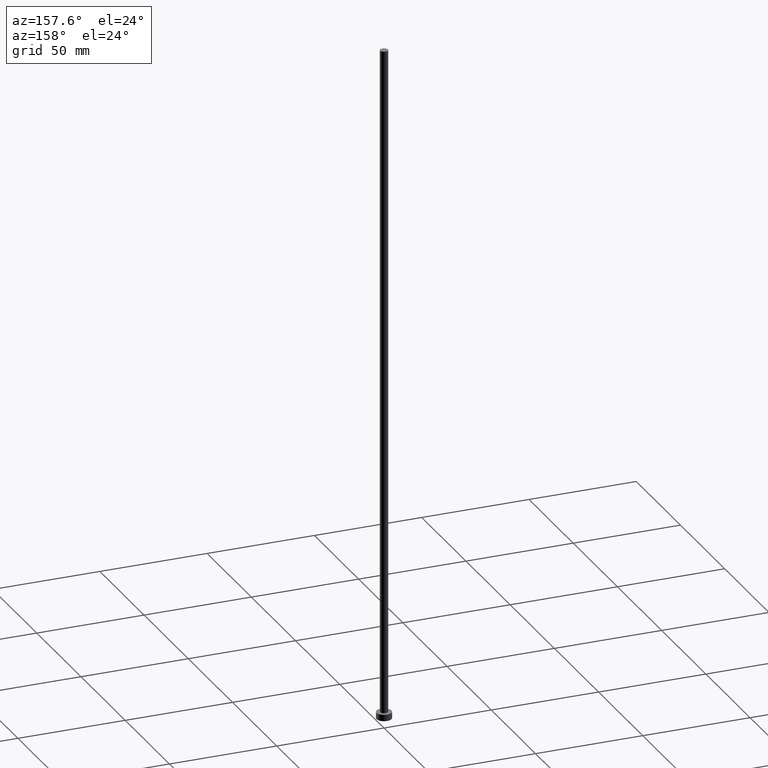
[diagram: clean part render]
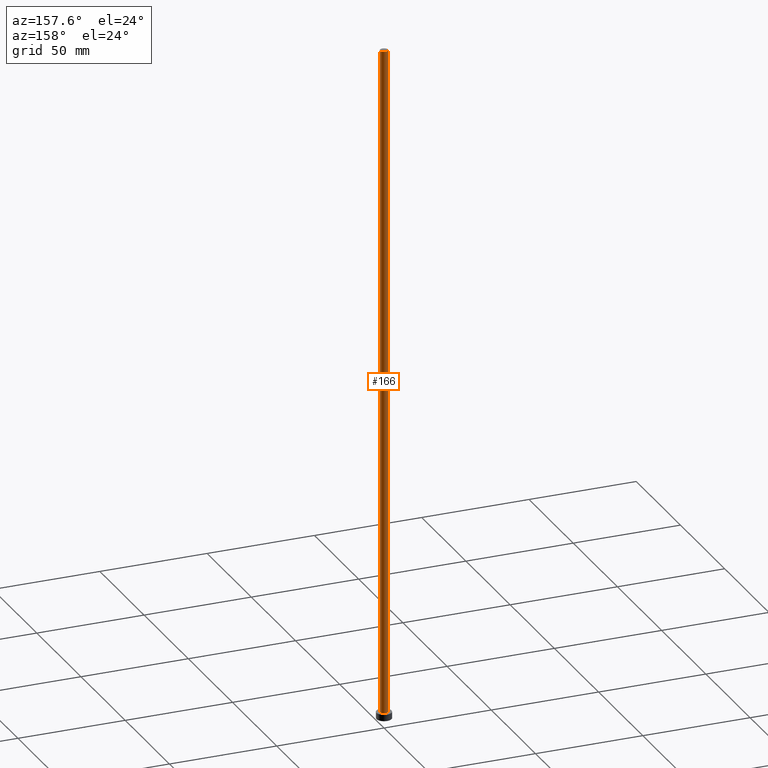
[diagram: same view with one face highlighted and labeled with its STEP entity id]
A machine part, auxiliary view. The second image highlights one B-rep face of the part: STEP entity #166.
In plain terms, the highlighted cylindrical surface (edge-blend (fillet) strip) has radius 1.85 mm, axis along (-0, -0, -1).
Its self-contained STEP definition (entity closure, byte-faithful):
#2 = DIRECTION ( 'NONE',  ( 1.000000000000000000, 0.000000000000000000, 0.000000000000000000 ) ) ;
#10 = LINE ( 'NONE', #33, #174 ) ;
#16 = EDGE_CURVE ( 'NONE', #40, #177, #201, .T. ) ;
#25 = CIRCLE ( 'NONE', #80, 1.850000000000000089 ) ;
#33 = CARTESIAN_POINT ( 'NONE',  ( 1.850000000000000089, 2.265596578422603100E-16, 315.0000000000000000 ) ) ;
#40 = VERTEX_POINT ( 'NONE', #144 ) ;
#47 = CARTESIAN_POINT ( 'NONE',  ( 1.850000000000000089, 2.265596578422603100E-16, 3.000000000000000000 ) ) ;
#51 = CARTESIAN_POINT ( 'NONE',  ( 0.000000000000000000, 0.000000000000000000, 315.0000000000000000 ) ) ;
#56 = CARTESIAN_POINT ( 'NONE',  ( -1.850000000000000089, 0.000000000000000000, 315.0000000000000000 ) ) ;
#61 = VERTEX_POINT ( 'NONE', #47 ) ;
#63 = VERTEX_POINT ( 'NONE', #73 ) ;
#69 = FACE_OUTER_BOUND ( 'NONE', #206, .T. ) ;
#73 = CARTESIAN_POINT ( 'NONE',  ( -1.850000000000000089, 0.000000000000000000, 3.000000000000000000 ) ) ;
#80 = AXIS2_PLACEMENT_3D ( 'NONE', #160, #155, #2 ) ;
#108 = DIRECTION ( 'NONE',  ( -0.000000000000000000, -0.000000000000000000, -1.000000000000000000 ) ) ;
#110 = DIRECTION ( 'NONE',  ( -0.000000000000000000, -0.000000000000000000, -1.000000000000000000 ) ) ;
#112 = DIRECTION ( 'NONE',  ( -1.000000000000000000, 0.000000000000000000, 0.000000000000000000 ) ) ;
#114 = EDGE_CURVE ( 'NONE', #177, #63, #235, .T. ) ;
#126 = EDGE_CURVE ( 'NONE', #40, #61, #10, .T. ) ;
#127 = ORIENTED_EDGE ( 'NONE', *, *, #114, .F. ) ;
#140 = DIRECTION ( 'NONE',  ( 1.000000000000000000, 0.000000000000000000, 0.000000000000000000 ) ) ;
#141 = DIRECTION ( 'NONE',  ( 0.000000000000000000, 0.000000000000000000, 1.000000000000000000 ) ) ;
#144 = CARTESIAN_POINT ( 'NONE',  ( 1.850000000000000089, 2.265596578422603100E-16, 315.0000000000000000 ) ) ;
#155 = DIRECTION ( 'NONE',  ( 0.000000000000000000, 0.000000000000000000, 1.000000000000000000 ) ) ;
#157 = AXIS2_PLACEMENT_3D ( 'NONE', #240, #141, #140 ) ;
#160 = CARTESIAN_POINT ( 'NONE',  ( 0.000000000000000000, 0.000000000000000000, 3.000000000000000000 ) ) ;
#161 = ORIENTED_EDGE ( 'NONE', *, *, #16, .F. ) ;
#166 = ADVANCED_FACE ( 'NONE', ( #69 ), #168, .T. ) ;
#168 = CYLINDRICAL_SURFACE ( 'NONE', #194, 1.850000000000000089 ) ;
#174 = VECTOR ( 'NONE', #108, 1000.000000000000000 ) ;
#177 = VERTEX_POINT ( 'NONE', #250 ) ;
#187 = VECTOR ( 'NONE', #110, 1000.000000000000000 ) ;
#194 = AXIS2_PLACEMENT_3D ( 'NONE', #51, #227, #112 ) ;
#201 = CIRCLE ( 'NONE', #157, 1.850000000000000089 ) ;
#206 = EDGE_LOOP ( 'NONE', ( #161, #221, #218, #127 ) ) ;
#214 = EDGE_CURVE ( 'NONE', #61, #63, #25, .T. ) ;
#218 = ORIENTED_EDGE ( 'NONE', *, *, #214, .T. ) ;
#221 = ORIENTED_EDGE ( 'NONE', *, *, #126, .T. ) ;
#227 = DIRECTION ( 'NONE',  ( -0.000000000000000000, -0.000000000000000000, -1.000000000000000000 ) ) ;
#235 = LINE ( 'NONE', #56, #187 ) ;
#240 = CARTESIAN_POINT ( 'NONE',  ( 0.000000000000000000, 0.000000000000000000, 315.0000000000000000 ) ) ;
#250 = CARTESIAN_POINT ( 'NONE',  ( -1.850000000000000089, 0.000000000000000000, 315.0000000000000000 ) ) ;